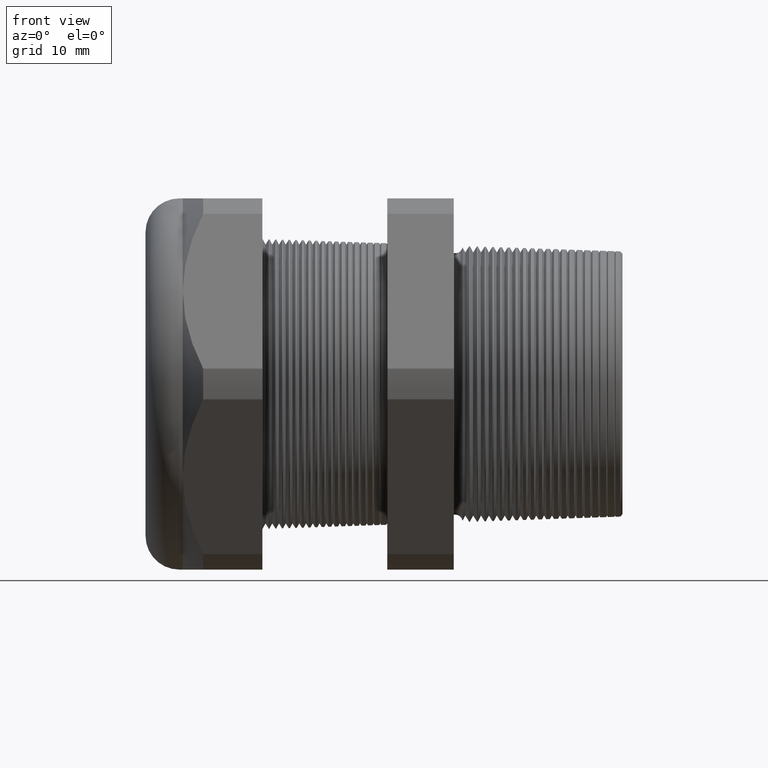
[diagram: clean part render]
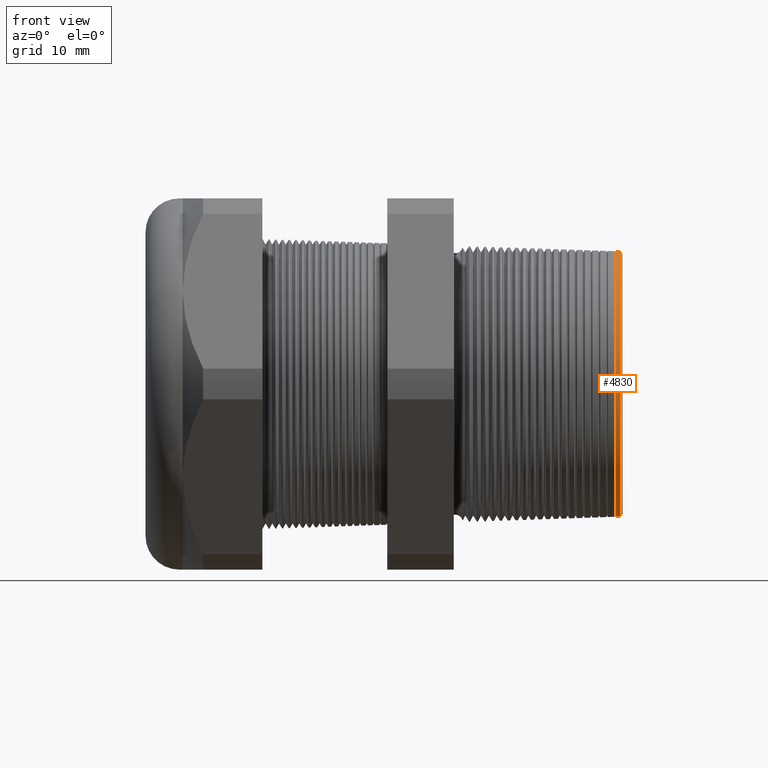
[diagram: same view with one face highlighted and labeled with its STEP entity id]
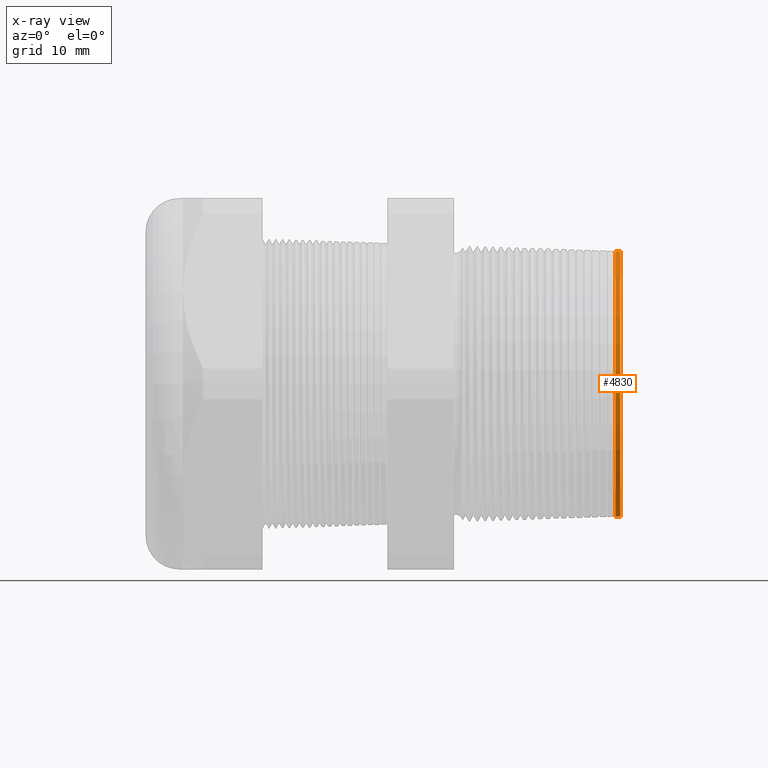
[diagram: x-ray of the same camera — body ghosted, the highlighted face saturated]
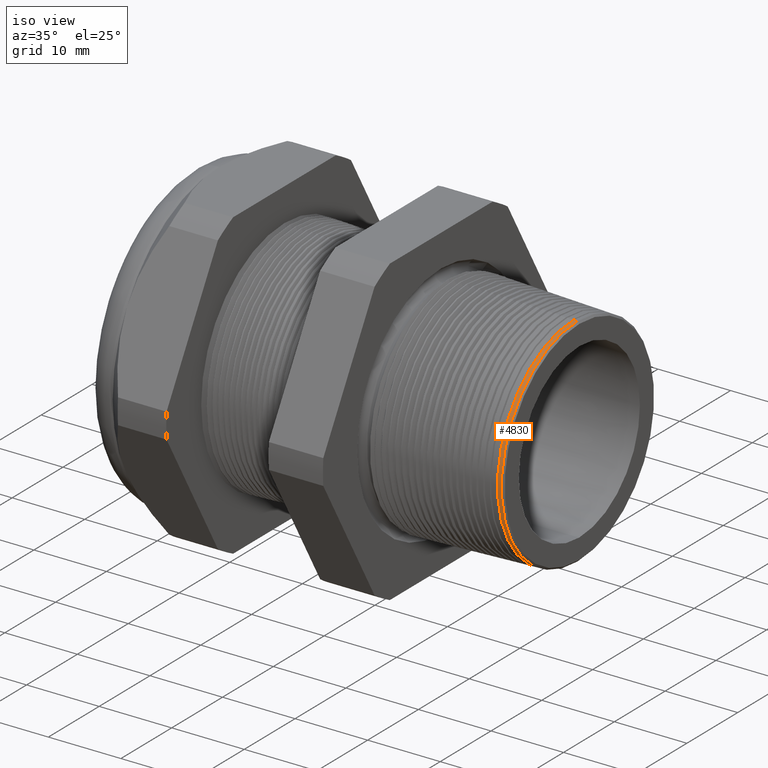
[diagram: same view with one face highlighted and labeled with its STEP entity id]
A machine part, front view. The second image highlights one B-rep face of the part: STEP entity #4830.
The next image is the same camera in x-ray: the body ghosted, the highlighted face saturated — about 0% of this face is hidden behind the body in this view.
A second angle (iso view) of the same face is appended — the face is thin or edge-on in the first view.
In plain terms, the highlighted conical surface has half-angle 2 deg.
Its self-contained STEP definition (entity closure, byte-faithful):
#819 = DIRECTION ( 'NONE',  ( -1.000000000000000000, 0.0000000000000000000, 0.0000000000000000000 ) ) ;
#820 = AXIS2_PLACEMENT_3D ( 'NONE', #823, #819, #890 ) ;
#821 = CONICAL_SURFACE ( 'NONE', #820, 0.5891157701456586300, 0.03490658503987943000 ) ;
#823 = CARTESIAN_POINT ( 'NONE',  ( 0.4400000000000001100, 0.0000000000000000000, 0.0000000000000000000 ) ) ;
#829 = FACE_OUTER_BOUND ( 'NONE', #4831, .T. ) ;
#890 = DIRECTION ( 'NONE',  ( 0.0000000000000000000, 0.0000000000000000000, 1.000000000000000000 ) ) ;
#952 = DIRECTION ( 'NONE',  ( 0.0000000000000000000, 0.0000000000000000000, -1.000000000000000000 ) ) ;
#953 = DIRECTION ( 'NONE',  ( -1.000000000000000000, 0.0000000000000000000, 0.0000000000000000000 ) ) ;
#954 = CARTESIAN_POINT ( 'NONE',  ( 0.4300060917298081900, 0.0000000000000000000, 0.0000000000000000000 ) ) ;
#955 = AXIS2_PLACEMENT_3D ( 'NONE', #954, #953, #952 ) ;
#956 = CIRCLE ( 'NONE', #955, 0.5894647651126836400 ) ;
#1010 = DIRECTION ( 'NONE',  ( 0.0000000000000000000, 0.0000000000000000000, -1.000000000000000000 ) ) ;
#1011 = DIRECTION ( 'NONE',  ( -1.000000000000000000, 0.0000000000000000000, 0.0000000000000000000 ) ) ;
#1012 = CARTESIAN_POINT ( 'NONE',  ( 0.4096714597583883100, 0.0000000000000000000, 0.0000000000000000000 ) ) ;
#1013 = AXIS2_PLACEMENT_3D ( 'NONE', #1012, #1011, #1010 ) ;
#1014 = CIRCLE ( 'NONE', #1013, 0.5901748661084570400 ) ;
#2561 = CARTESIAN_POINT ( 'NONE',  ( 0.4300060917298081900, 0.0000000000000000000, 0.5894647651126836400 ) ) ;
#2678 = CARTESIAN_POINT ( 'NONE',  ( 0.4300060917298081900, 7.223209492611670200E-017, -0.5894647651126836400 ) ) ;
#3622 = CARTESIAN_POINT ( 'NONE',  ( 0.4400000000000001100, 0.0000000000000000000, 0.5891157701456586300 ) ) ;
#3623 = LINE ( 'NONE', #3622, #3686 ) ;
#3660 = DIRECTION ( 'NONE',  ( -0.9993908270190959800, 4.273955692856265900E-018, -0.03489949670249381500 ) ) ;
#3661 = VECTOR ( 'NONE', #3660, 39.37007874015748100 ) ;
#3662 = CARTESIAN_POINT ( 'NONE',  ( 0.4400000000000001100, 7.214587422361087700E-017, -0.5891157701456586300 ) ) ;
#3663 = LINE ( 'NONE', #3662, #3661 ) ;
#3685 = DIRECTION ( 'NONE',  ( -0.9993908270190959800, 0.0000000000000000000, 0.03489949670249381500 ) ) ;
#3686 = VECTOR ( 'NONE', #3685, 39.37007874015748100 ) ;
#4009 = CARTESIAN_POINT ( 'NONE',  ( 0.4096714597583883100, 0.0000000000000000000, 0.5901748661084569300 ) ) ;
#4010 = CARTESIAN_POINT ( 'NONE',  ( 0.4096714597583883100, 7.227557607169396300E-017, -0.5901748661084569300 ) ) ;
#4830 = ADVANCED_FACE ( 'NONE', ( #829 ), #821, .T. ) ;
#4831 = EDGE_LOOP ( 'NONE', ( #4832, #4891, #4893, #4894 ) ) ;
#4832 = ORIENTED_EDGE ( 'NONE', *, *, #7700, .F. ) ;
#4891 = ORIENTED_EDGE ( 'NONE', *, *, #4892, .T. ) ;
#4892 = EDGE_CURVE ( 'NONE', #7185, #7143, #956, .T. ) ;
#4893 = ORIENTED_EDGE ( 'NONE', *, *, #7689, .T. ) ;
#4894 = ORIENTED_EDGE ( 'NONE', *, *, #4895, .F. ) ;
#4895 = EDGE_CURVE ( 'NONE', #7857, #7858, #1014, .T. ) ;
#7143 = VERTEX_POINT ( 'NONE', #2561 ) ;
#7185 = VERTEX_POINT ( 'NONE', #2678 ) ;
#7689 = EDGE_CURVE ( 'NONE', #7143, #7858, #3623, .T. ) ;
#7700 = EDGE_CURVE ( 'NONE', #7185, #7857, #3663, .T. ) ;
#7857 = VERTEX_POINT ( 'NONE', #4010 ) ;
#7858 = VERTEX_POINT ( 'NONE', #4009 ) ;